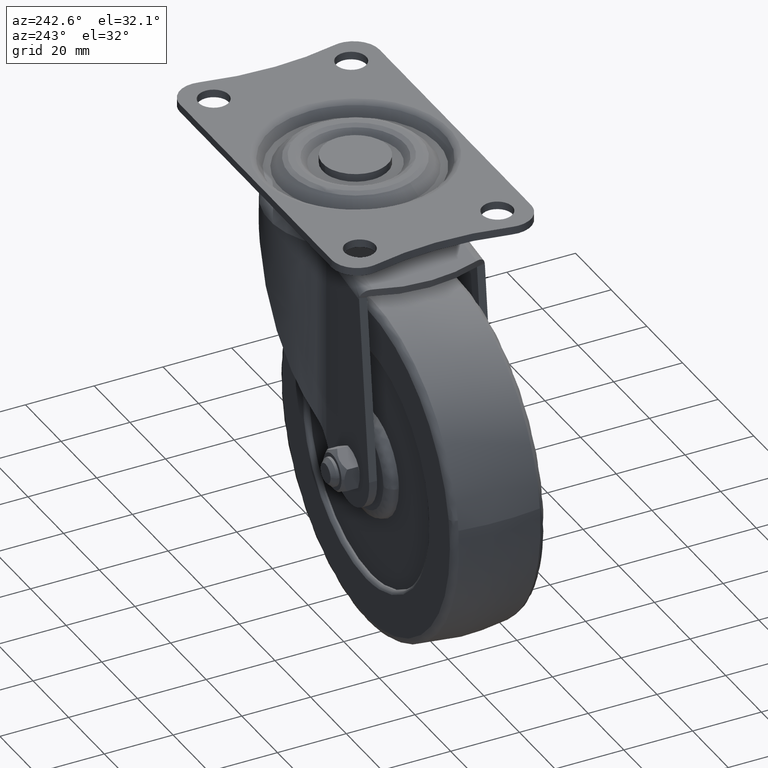
[diagram: clean part render]
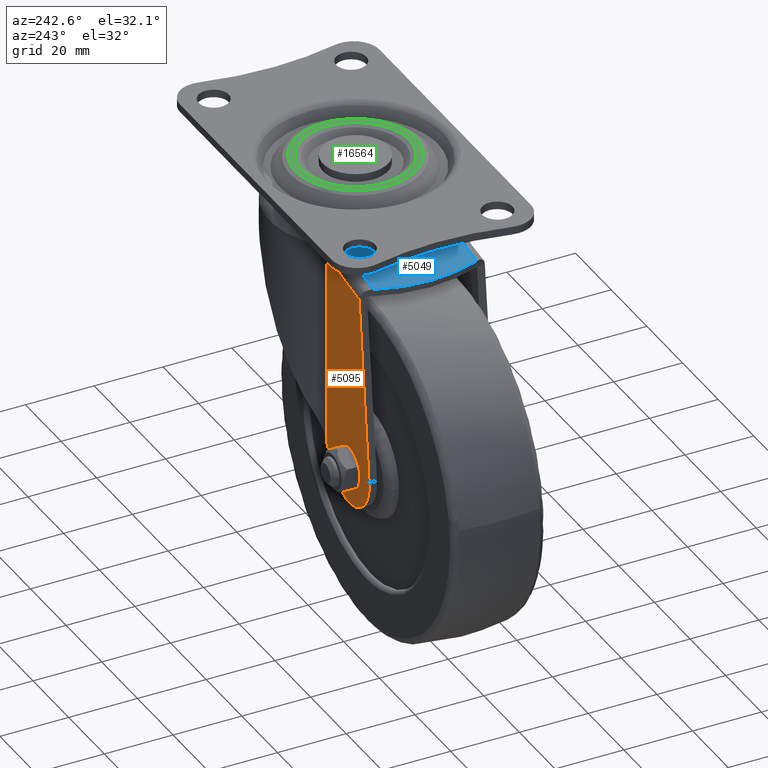
[diagram: same view with three faces highlighted in distinct colors, each labeled with its STEP entity id]
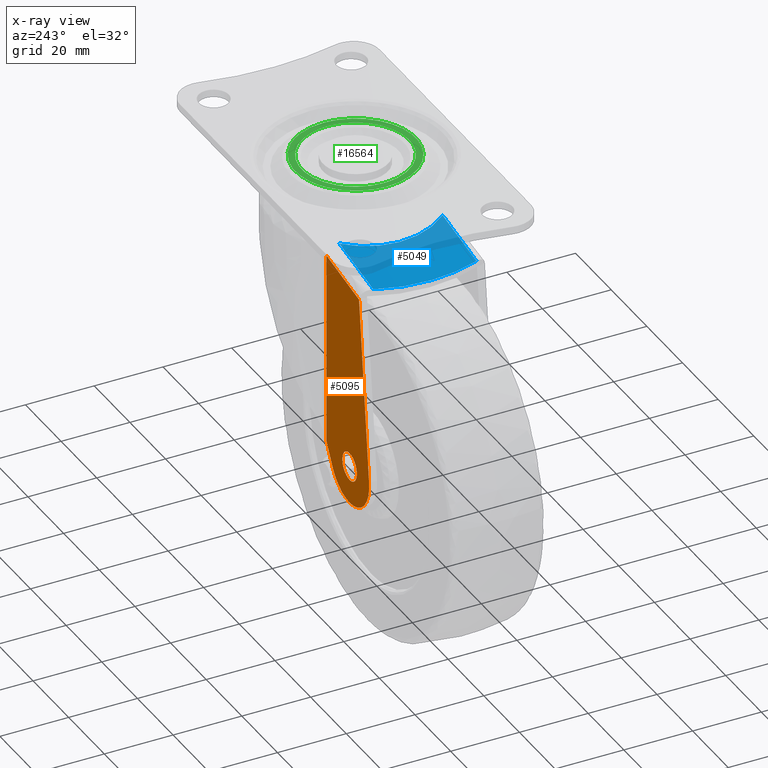
[diagram: x-ray of the same camera — body ghosted, the three highlighted faces saturated]
A machine part, auxiliary view with three faces highlighted in distinct colors.
The next image is the same camera in x-ray (body ghosted, the three faces saturated) — at least one of them is partly hidden behind the body in this view.
Their STEP definitions:

[orange] entity #5095 — the highlighted face is a freeform B-spline surface patch.
#938=CARTESIAN_POINT('',(-4.042445933602053,18.299990000000001,0.247246585222561));
#939=VERTEX_POINT('',#938);
#945=CARTESIAN_POINT('',(0.0,18.299990000000001,4.050000000000000));
#946=VERTEX_POINT('',#945);
#947=CARTESIAN_POINT('',(0.0,18.299990000000001,4.050000000000000));
#948=CARTESIAN_POINT('',(-3.809859570767141,18.299989999999994,4.050000000000000));
#949=CARTESIAN_POINT('',(-4.042445933602052,18.299989999999994,0.247246585222561));
#957=(BOUNDED_CURVE()B_SPLINE_CURVE(2,(#947,#948,#949),.UNSPECIFIED.,.F.,.U.)B_SPLINE_CURVE_WITH_KNOTS((3,3),(0.500000000000000,0.739332962232885),.UNSPECIFIED.)CURVE()GEOMETRIC_REPRESENTATION_ITEM()RATIONAL_B_SPLINE_CURVE((1.0,0.719603993293807,0.976072041653736))REPRESENTATION_ITEM(''));
#958=EDGE_CURVE('',#946,#939,#957,.T.);
#960=CARTESIAN_POINT('',(4.021688581718690,18.299989999999990,-0.478038650815499));
#961=VERTEX_POINT('',#960);
#962=CARTESIAN_POINT('',(4.021688581718690,18.299989999999994,-0.478038650815499));
#963=CARTESIAN_POINT('',(4.050000000000001,18.299989999999994,-0.239857685050681));
#964=CARTESIAN_POINT('',(4.050000000000000,18.299990000000001,0.0));
#965=CARTESIAN_POINT('',(4.050000000000001,18.299990000000001,4.050000000000001));
#966=CARTESIAN_POINT('',(0.0,18.299990000000001,4.050000000000000));
#974=(BOUNDED_CURVE()B_SPLINE_CURVE(2,(#962,#963,#964,#965,#966),.UNSPECIFIED.,.F.,.U.)B_SPLINE_CURVE_WITH_KNOTS((3,2,3),(0.229562473477351,0.250000000000000,0.500000000000000),.UNSPECIFIED.)CURVE()GEOMETRIC_REPRESENTATION_ITEM()RATIONAL_B_SPLINE_CURVE((0.956026754112829,0.976055948288784,1.0,0.707106781186548,1.0))REPRESENTATION_ITEM(''));
#975=EDGE_CURVE('',#961,#946,#974,.T.);
#1019=CARTESIAN_POINT('',(0.0,18.299990000000001,-4.050000000000000));
#1020=VERTEX_POINT('',#1019);
#1021=CARTESIAN_POINT('',(0.0,18.299990000000001,-4.050000000000000));
#1022=CARTESIAN_POINT('',(3.597106829282247,18.299989999999994,-4.049999999999999));
#1023=CARTESIAN_POINT('',(4.021688581718690,18.299990000000001,-0.478038650815499));
#1031=(BOUNDED_CURVE()B_SPLINE_CURVE(2,(#1021,#1022,#1023),.UNSPECIFIED.,.F.,.U.)B_SPLINE_CURVE_WITH_KNOTS((3,3),(0.0,0.229562473477351),.UNSPECIFIED.)CURVE()GEOMETRIC_REPRESENTATION_ITEM()RATIONAL_B_SPLINE_CURVE((1.0,0.731050832897764,0.956026754112828))REPRESENTATION_ITEM(''));
#1032=EDGE_CURVE('',#1020,#961,#1031,.T.);
#1034=CARTESIAN_POINT('',(-4.042445933602053,18.299989999999994,0.247246585222561));
#1035=CARTESIAN_POINT('',(-4.050000000000000,18.299989999999994,0.123738691465974));
#1036=CARTESIAN_POINT('',(-4.050000000000000,18.299990000000001,0.0));
#1037=CARTESIAN_POINT('',(-4.050000000000001,18.299990000000001,-4.050000000000001));
#1038=CARTESIAN_POINT('',(0.0,18.299990000000001,-4.050000000000000));
#1046=(BOUNDED_CURVE()B_SPLINE_CURVE(2,(#1034,#1035,#1036,#1037,#1038),.UNSPECIFIED.,.F.,.U.)B_SPLINE_CURVE_WITH_KNOTS((3,2,3),(0.739332962232886,0.750000000000000,1.0),.UNSPECIFIED.)CURVE()GEOMETRIC_REPRESENTATION_ITEM()RATIONAL_B_SPLINE_CURVE((0.976072041653737,0.987502787892741,1.0,0.707106781186548,1.0))REPRESENTATION_ITEM(''));
#1047=EDGE_CURVE('',#939,#1020,#1046,.T.);
#3110=CARTESIAN_POINT('',(13.102633358060359,18.299990000000001,57.097268870670000));
#3111=VERTEX_POINT('',#3110);
#3136=CARTESIAN_POINT('',(13.102633358060340,18.299990000000001,0.746437204818262));
#3137=VERTEX_POINT('',#3136);
#3146=CARTESIAN_POINT('',(13.102633358060331,18.299990000000001,57.097268870670007));
#3147=CARTESIAN_POINT('',(13.102633358060340,18.299990000000001,0.746437204818262));
#3148=QUASI_UNIFORM_CURVE('',1,(#3146,#3147),.UNSPECIFIED.,.F.,.U.);
#3149=EDGE_CURVE('',#3111,#3137,#3148,.T.);
#4302=CARTESIAN_POINT('',(-5.319803650310750,18.299990000000001,53.848897031070912));
#4303=VERTEX_POINT('',#4302);
#4304=CARTESIAN_POINT('',(-5.319803650310750,18.299990000000001,53.848897031070912));
#4305=CARTESIAN_POINT('',(13.102633358060359,18.299990000000001,57.097268870670000));
#4306=QUASI_UNIFORM_CURVE('',1,(#4304,#4305),.UNSPECIFIED.,.F.,.U.);
#4307=EDGE_CURVE('',#4303,#3111,#4306,.T.);
#4708=CARTESIAN_POINT('',(9.546137404216450,18.299990000000001,-5.465460699686680));
#4709=VERTEX_POINT('',#4708);
#4715=CARTESIAN_POINT('',(9.546137404216450,18.299990000000001,-5.465460699686680));
#4716=CARTESIAN_POINT('',(13.102633358060340,18.299990000000001,0.746437204818262));
#4717=QUASI_UNIFORM_CURVE('',1,(#4715,#4716),.UNSPECIFIED.,.F.,.U.);
#4718=EDGE_CURVE('',#4709,#3137,#4717,.T.);
#4806=CARTESIAN_POINT('',(-10.937980000000000,18.299990000000001,1.166451000000000));
#4807=VERTEX_POINT('',#4806);
#4808=CARTESIAN_POINT('',(-10.937980000000000,18.299990000000001,1.166451000000000));
#4809=CARTESIAN_POINT('',(-11.885038459407550,18.299989999999994,-7.714259544833236));
#4810=CARTESIAN_POINT('',(-3.388195532598485,18.299990000000001,-10.465186621980500));
#4811=CARTESIAN_POINT('',(5.108647394210569,18.299989999999994,-13.216113699127762));
#4812=CARTESIAN_POINT('',(9.546137404216449,18.299990000000001,-5.465460699686682));
#4820=(BOUNDED_CURVE()B_SPLINE_CURVE(2,(#4808,#4809,#4810,#4811,#4812),.UNSPECIFIED.,.F.,.U.)B_SPLINE_CURVE_WITH_KNOTS((3,2,3),(0.0,0.500000000000000,1.0),.UNSPECIFIED.)CURVE()GEOMETRIC_REPRESENTATION_ITEM()RATIONAL_B_SPLINE_CURVE((1.0,0.776336187748708,1.0,0.776336187748708,1.0))REPRESENTATION_ITEM(''));
#4821=EDGE_CURVE('',#4807,#4709,#4820,.T.);
#5073=CARTESIAN_POINT('',(-12.202571688152940,18.299990000000001,60.498279133008950));
#5074=CARTESIAN_POINT('',(-12.202571688152940,18.299990000000001,-14.392066209955390));
#5075=CARTESIAN_POINT('',(14.306496041032471,18.299990000000001,60.498279133008950));
#5076=CARTESIAN_POINT('',(14.306496041032471,18.299990000000001,-14.392066209955390));
#5077=B_SPLINE_SURFACE_WITH_KNOTS('',1,1,((#5073,#5075),(#5074,#5076)),.UNSPECIFIED.,.F.,.F.,.U.,(2,2),(2,2),(0.0,74.890345342964338),(0.0,26.509067729185411),.UNSPECIFIED.);
#5078=ORIENTED_EDGE('',*,*,#4307,.T.);
#5079=ORIENTED_EDGE('',*,*,#3149,.T.);
#5080=ORIENTED_EDGE('',*,*,#4718,.F.);
#5081=ORIENTED_EDGE('',*,*,#4821,.F.);
#5082=CARTESIAN_POINT('',(-5.319803650310750,18.299990000000001,53.848897031070912));
#5083=CARTESIAN_POINT('',(-10.937980000000000,18.299990000000001,1.166451000000000));
#5084=QUASI_UNIFORM_CURVE('',1,(#5082,#5083),.UNSPECIFIED.,.F.,.U.);
#5085=EDGE_CURVE('',#4303,#4807,#5084,.T.);
#5086=ORIENTED_EDGE('',*,*,#5085,.F.);
#5087=EDGE_LOOP('',(#5078,#5079,#5080,#5081,#5086));
#5088=FACE_OUTER_BOUND('',#5087,.T.);
#5089=ORIENTED_EDGE('',*,*,#958,.T.);
#5090=ORIENTED_EDGE('',*,*,#1047,.T.);
#5091=ORIENTED_EDGE('',*,*,#1032,.T.);
#5092=ORIENTED_EDGE('',*,*,#975,.T.);
#5093=EDGE_LOOP('',(#5089,#5090,#5091,#5092));
#5094=FACE_BOUND('',#5093,.T.);
#5095=ADVANCED_FACE('',(#5088,#5094),#5077,.F.);

[blue] entity #5049 — the highlighted face is a freeform B-spline surface patch.
#3328=CARTESIAN_POINT('',(12.092780426300401,14.999990000000000,60.270112391757898));
#3329=VERTEX_POINT('',#3328);
#3443=CARTESIAN_POINT('',(12.092784416674540,-14.999995000000039,60.270113095368302));
#3444=VERTEX_POINT('',#3443);
#3460=CARTESIAN_POINT('',(12.092784416674540,-14.999995000000039,60.270113095368302));
#3461=CARTESIAN_POINT('',(9.586914548648743,-11.859828696188289,59.828260743841973));
#3462=CARTESIAN_POINT('',(8.248403230446971,-7.936932919974216,59.592245146608249));
#3463=CARTESIAN_POINT('',(6.928782517232540,-4.069401542632245,59.359560471838577));
#3464=CARTESIAN_POINT('',(6.929964610041198,0.008150225393799,59.359768906639573));
#3465=CARTESIAN_POINT('',(6.931152936749060,4.107205420688653,59.359978440644880));
#3466=CARTESIAN_POINT('',(8.247931851688730,7.956285679843744,59.592162029836928));
#3467=CARTESIAN_POINT('',(9.580661018454245,11.851990166297790,59.827158078034373));
#3468=CARTESIAN_POINT('',(12.092780426300401,14.999990000000000,60.270112391757898));
#3469=B_SPLINE_CURVE_WITH_KNOTS('',2,(#3460,#3461,#3462,#3463,#3464,#3465,#3466,#3467,#3468),.UNSPECIFIED.,.F.,.U.,(3,2,2,2,3),(0.0,0.250000000000000,0.500000000000000,0.750000000000000,1.0),.UNSPECIFIED.);
#3470=EDGE_CURVE('',#3444,#3329,#3469,.T.);
#4226=CARTESIAN_POINT('',(-6.924999607116350,-14.999995000000039,56.916765541709204));
#4227=VERTEX_POINT('',#4226);
#4228=CARTESIAN_POINT('',(-6.924999607116350,-14.999995000000039,56.916765541709204));
#4229=CARTESIAN_POINT('',(12.092784416674540,-14.999995000000039,60.270113095368302));
#4230=QUASI_UNIFORM_CURVE('',1,(#4228,#4229),.UNSPECIFIED.,.F.,.U.);
#4231=EDGE_CURVE('',#4227,#3444,#4230,.T.);
#4323=CARTESIAN_POINT('',(-6.925001224186230,14.999990000000000,56.916765256576198));
#4324=VERTEX_POINT('',#4323);
#4354=CARTESIAN_POINT('',(12.092780426300401,14.999990000000000,60.270112391757898));
#4355=CARTESIAN_POINT('',(-6.925001224186230,14.999990000000000,56.916765256576198));
#4356=QUASI_UNIFORM_CURVE('',1,(#4354,#4355),.UNSPECIFIED.,.F.,.U.);
#4357=EDGE_CURVE('',#3329,#4324,#4356,.T.);
#5026=CARTESIAN_POINT('',(13.160780834195480,-16.498494474222650,60.458429629488720));
#5027=CARTESIAN_POINT('',(-10.356506226356720,-16.498494474222650,56.311698499586988));
#5028=CARTESIAN_POINT('',(13.160780834195480,16.498490010664138,60.458429629488720));
#5029=CARTESIAN_POINT('',(-10.356506226356720,16.498490010664138,56.311698499586988));
#5030=B_SPLINE_SURFACE_WITH_KNOTS('',1,1,((#5026,#5028),(#5027,#5029)),.UNSPECIFIED.,.F.,.F.,.U.,(2,2),(2,2),(0.0,23.880078931027679),(0.0,32.996984484886802),.UNSPECIFIED.);
#5031=ORIENTED_EDGE('',*,*,#4231,.T.);
#5032=ORIENTED_EDGE('',*,*,#3470,.T.);
#5033=ORIENTED_EDGE('',*,*,#4357,.T.);
#5034=CARTESIAN_POINT('',(-6.925001224186225,14.999989999999990,56.916765256576213));
#5035=CARTESIAN_POINT('',(-11.776207559479825,-0.000002769621591,56.061366915928232));
#5036=CARTESIAN_POINT('',(-6.924999607116365,-14.999995000000011,56.916765541709182));
#5044=(BOUNDED_CURVE()B_SPLINE_CURVE(2,(#5034,#5035,#5036),.UNSPECIFIED.,.F.,.U.)CURVE()GEOMETRIC_REPRESENTATION_ITEM()QUASI_UNIFORM_CURVE()RATIONAL_B_SPLINE_CURVE((1.0,0.950079150635109,1.0))REPRESENTATION_ITEM(''));
#5045=EDGE_CURVE('',#4324,#4227,#5044,.T.);
#5046=ORIENTED_EDGE('',*,*,#5045,.T.);
#5047=EDGE_LOOP('',(#5031,#5032,#5033,#5046));
#5048=FACE_OUTER_BOUND('',#5047,.T.);
#5049=ADVANCED_FACE('',(#5048),#5030,.F.);

[green] entity #16564 — the highlighted face is a freeform B-spline surface patch.
#13729=CARTESIAN_POINT('',(44.496967530474777,12.340904524006641,72.0));
#13730=VERTEX_POINT('',#13729);
#13744=CARTESIAN_POINT('',(49.563374443799013,0.0,72.0));
#13745=VERTEX_POINT('',#13744);
#13746=CARTESIAN_POINT('',(49.563374443799013,0.0,72.0));
#13747=CARTESIAN_POINT('',(49.563374443798999,7.210427855422378,72.000000000000014));
#13748=CARTESIAN_POINT('',(44.496967530474777,12.340904524006637,72.0));
#13756=(BOUNDED_CURVE()B_SPLINE_CURVE(2,(#13746,#13747,#13748),.UNSPECIFIED.,.F.,.U.)B_SPLINE_CURVE_WITH_KNOTS((3,3),(0.0,0.124051937432010),.UNSPECIFIED.)CURVE()GEOMETRIC_REPRESENTATION_ITEM()RATIONAL_B_SPLINE_CURVE((1.0,0.854664114981975,0.853561814883004))REPRESENTATION_ITEM(''));
#13757=EDGE_CURVE('',#13745,#13730,#13756,.T.);
#13759=CARTESIAN_POINT('',(14.436625556200999,0.0,72.0));
#13760=VERTEX_POINT('',#13759);
#13761=CARTESIAN_POINT('',(14.436625556200999,0.0,72.0));
#13762=CARTESIAN_POINT('',(14.436625556201001,-17.563374443799002,72.0));
#13763=CARTESIAN_POINT('',(32.0,-17.563374443798999,72.0));
#13764=CARTESIAN_POINT('',(49.563374443798999,-17.563374443799002,72.0));
#13765=CARTESIAN_POINT('',(49.563374443799013,0.0,72.0));
#13773=(BOUNDED_CURVE()B_SPLINE_CURVE(2,(#13761,#13762,#13763,#13764,#13765),.UNSPECIFIED.,.F.,.U.)B_SPLINE_CURVE_WITH_KNOTS((3,2,3),(0.500000000000000,0.750000000000000,1.0),.UNSPECIFIED.)CURVE()GEOMETRIC_REPRESENTATION_ITEM()RATIONAL_B_SPLINE_CURVE((1.0,0.707106781186547,1.0,0.707106781186547,1.0))REPRESENTATION_ITEM(''));
#13774=EDGE_CURVE('',#13760,#13745,#13773,.T.);
#13776=CARTESIAN_POINT('',(21.184588628496670,13.838316326934420,72.0));
#13777=VERTEX_POINT('',#13776);
#13778=CARTESIAN_POINT('',(21.184588628496666,13.838316326934423,72.0));
#13779=CARTESIAN_POINT('',(14.436625556201003,8.564409093889244,72.0));
#13780=CARTESIAN_POINT('',(14.436625556200999,0.0,72.0));
#13788=(BOUNDED_CURVE()B_SPLINE_CURVE(2,(#13778,#13779,#13780),.UNSPECIFIED.,.F.,.U.)B_SPLINE_CURVE_WITH_KNOTS((3,3),(0.356567917885369,0.500000000000000),.UNSPECIFIED.)CURVE()GEOMETRIC_REPRESENTATION_ITEM()RATIONAL_B_SPLINE_CURVE((0.856737647417273,0.831958863153321,1.0))REPRESENTATION_ITEM(''));
#13789=EDGE_CURVE('',#13777,#13760,#13788,.T.);
#13826=CARTESIAN_POINT('',(44.496967530474777,12.340904524006637,72.0));
#13827=CARTESIAN_POINT('',(39.339716178086427,17.563374443798992,72.0));
#13828=CARTESIAN_POINT('',(32.0,17.563374443798999,72.0));
#13829=CARTESIAN_POINT('',(25.950799622200876,17.563374443798992,72.0));
#13830=CARTESIAN_POINT('',(21.184588628496666,13.838316326934423,72.0));
#13838=(BOUNDED_CURVE()B_SPLINE_CURVE(2,(#13826,#13827,#13828,#13829,#13830),.UNSPECIFIED.,.F.,.U.)B_SPLINE_CURVE_WITH_KNOTS((3,2,3),(0.124051937432010,0.250000000000000,0.356567917885369),.UNSPECIFIED.)CURVE()GEOMETRIC_REPRESENTATION_ITEM()RATIONAL_B_SPLINE_CURVE((0.853561814883004,0.852442666204573,1.0,0.875147918033226,0.856737647417273))REPRESENTATION_ITEM(''));
#13839=EDGE_CURVE('',#13730,#13777,#13838,.T.);
#13877=CARTESIAN_POINT('',(20.742700737252541,-10.840712219804031,72.0));
#13878=VERTEX_POINT('',#13877);
#13892=CARTESIAN_POINT('',(47.628430124746203,0.0,72.0));
#13893=VERTEX_POINT('',#13892);
#13894=CARTESIAN_POINT('',(47.628430124746203,0.0,72.0));
#13895=CARTESIAN_POINT('',(47.628430124746195,-15.628430124746203,72.0));
#13896=CARTESIAN_POINT('',(32.0,-15.628430124746201,72.0));
#13897=CARTESIAN_POINT('',(25.353244595554951,-15.628430124746206,72.0));
#13898=CARTESIAN_POINT('',(20.742700737252544,-10.840712219804026,72.0));
#13906=(BOUNDED_CURVE()B_SPLINE_CURVE(2,(#13894,#13895,#13896,#13897,#13898),.UNSPECIFIED.,.F.,.U.)B_SPLINE_CURVE_WITH_KNOTS((3,2,3),(0.0,0.250000000000000,0.377844262562477),.UNSPECIFIED.)CURVE()GEOMETRIC_REPRESENTATION_ITEM()RATIONAL_B_SPLINE_CURVE((1.0,0.707106781186547,1.0,0.850221129724976,0.853629213191963))REPRESENTATION_ITEM(''));
#13907=EDGE_CURVE('',#13893,#13878,#13906,.T.);
#13909=CARTESIAN_POINT('',(21.159287785008690,11.257299257707221,72.0));
#13910=VERTEX_POINT('',#13909);
#13911=CARTESIAN_POINT('',(21.159287785008690,11.257299257707221,72.0));
#13912=CARTESIAN_POINT('',(25.698392519054924,15.628430124746203,72.0));
#13913=CARTESIAN_POINT('',(32.0,15.628430124746201,72.0));
#13914=CARTESIAN_POINT('',(47.628430124746195,15.628430124746203,72.0));
#13915=CARTESIAN_POINT('',(47.628430124746203,0.0,72.0));
#13923=(BOUNDED_CURVE()B_SPLINE_CURVE(2,(#13911,#13912,#13913,#13914,#13915),.UNSPECIFIED.,.F.,.U.)B_SPLINE_CURVE_WITH_KNOTS((3,2,3),(0.627844262561906,0.750000000000000,1.0),.UNSPECIFIED.)CURVE()GEOMETRIC_REPRESENTATION_ITEM()RATIONAL_B_SPLINE_CURVE((0.853629213191932,0.856885651460903,1.0,0.707106781186547,1.0))REPRESENTATION_ITEM(''));
#13924=EDGE_CURVE('',#13910,#13893,#13923,.T.);
#13963=CARTESIAN_POINT('',(16.371569875253801,0.0,72.0));
#13964=VERTEX_POINT('',#13963);
#13965=CARTESIAN_POINT('',(16.371569875253801,0.0,72.0));
#13966=CARTESIAN_POINT('',(16.371569875253797,6.646755404410208,72.0));
#13967=CARTESIAN_POINT('',(21.159287785008690,11.257299257707221,72.0));
#13975=(BOUNDED_CURVE()B_SPLINE_CURVE(2,(#13965,#13966,#13967),.UNSPECIFIED.,.F.,.U.)B_SPLINE_CURVE_WITH_KNOTS((3,3),(0.500000000000000,0.627844262561907),.UNSPECIFIED.)CURVE()GEOMETRIC_REPRESENTATION_ITEM()RATIONAL_B_SPLINE_CURVE((1.0,0.850221129725644,0.853629213191932))REPRESENTATION_ITEM(''));
#13976=EDGE_CURVE('',#13964,#13910,#13975,.T.);
#13978=CARTESIAN_POINT('',(20.742700737252544,-10.840712219804026,72.0));
#13979=CARTESIAN_POINT('',(16.371569875253805,-6.301607480910733,72.0));
#13980=CARTESIAN_POINT('',(16.371569875253801,0.0,72.0));
#13988=(BOUNDED_CURVE()B_SPLINE_CURVE(2,(#13978,#13979,#13980),.UNSPECIFIED.,.F.,.U.)B_SPLINE_CURVE_WITH_KNOTS((3,3),(0.377844262562477,0.500000000000000),.UNSPECIFIED.)CURVE()GEOMETRIC_REPRESENTATION_ITEM()RATIONAL_B_SPLINE_CURVE((0.853629213191963,0.856885651461571,1.0))REPRESENTATION_ITEM(''));
#13989=EDGE_CURVE('',#13878,#13964,#13988,.T.);
#16547=CARTESIAN_POINT('',(12.682044313100571,-19.317847518011011,72.0));
#16548=CARTESIAN_POINT('',(51.317953802553802,-19.317847518011011,72.0));
#16549=CARTESIAN_POINT('',(12.682044313100571,19.315700836723160,72.0));
#16550=CARTESIAN_POINT('',(51.317953802553802,19.315700836723160,72.0));
#16551=B_SPLINE_SURFACE_WITH_KNOTS('',1,1,((#16547,#16549),(#16548,#16550)),.UNSPECIFIED.,.F.,.F.,.U.,(2,2),(2,2),(0.0,38.635909489453233),(0.0,38.633548354734167),.UNSPECIFIED.);
#16552=ORIENTED_EDGE('',*,*,#13789,.T.);
#16553=ORIENTED_EDGE('',*,*,#13774,.T.);
#16554=ORIENTED_EDGE('',*,*,#13757,.T.);
#16555=ORIENTED_EDGE('',*,*,#13839,.T.);
#16556=EDGE_LOOP('',(#16552,#16553,#16554,#16555));
#16557=FACE_OUTER_BOUND('',#16556,.T.);
#16558=ORIENTED_EDGE('',*,*,#13976,.T.);
#16559=ORIENTED_EDGE('',*,*,#13924,.T.);
#16560=ORIENTED_EDGE('',*,*,#13907,.T.);
#16561=ORIENTED_EDGE('',*,*,#13989,.T.);
#16562=EDGE_LOOP('',(#16558,#16559,#16560,#16561));
#16563=FACE_BOUND('',#16562,.T.);
#16564=ADVANCED_FACE('',(#16557,#16563),#16551,.T.);